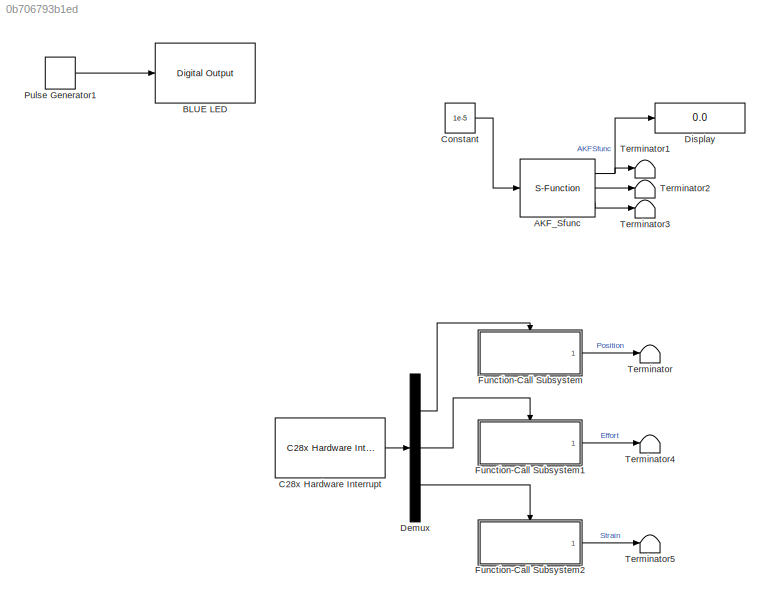
MODEL slx_0b706793b1ed
KIND model
CONFIG AbsTol = auto
CONFIG EnableMultiTasking = on
CONFIG FixedStep = auto
CONFIG InitFcn = clear\naddpath('./../1D/')\naddpath(genpath('./nml'))\naddpath('./MatLib')\n\n% Run configuration file\n[Beam, sBeam, modelSettings,...\n        simulationSettings, plotSettings, simulinkSettings,...\n        LO,KF,AKF,DKF,GDF,...\n        Cd] = configure(1);\n\n% Additional settings\nAKF.nd = AKF.derivativeOrder;\nDKF.nd = DKF.derivativeOrder;\nmodelSettings.l = 1;\n\n% Build beam model, put it in model object\nS...<+470ch>
CONFIG MaxStep = auto
CONFIG MinStep = auto
CONFIG RelTol = 1e-3
CONFIG SampleTimeConstraint = Unconstrained
CONFIG SolverName = FixedStepDiscrete
CONFIG StartTime = 0.0
CONFIG StopTime = Inf
BLOCK [S-Function] AKF_Sfunc
  Commented = on
  EnableBusSupport = off
  FunctionName = AKF_Sfunc
  Parameters = Ap,Cp,Qp,Rp,Np,P0p,Bwp,nup,nyp,nqp
  Ports = [1, 3]
  SFcnIsStateOwnerBlock = off
  SFunctionDeploymentMode = off
BLOCK [Reference] BLUE LED  REF=c2837xDlib/Digital Output
  Ports = [1]
  SourceBlock = c2837xDlib/Digital Output
  SourceProductBaseCode = TIC2000
  SourceType = F2837x GPIO Digital Output
  UserDataPersistent = on
BLOCK [Reference] C28x Hardware Interrupt  REF=c2000lib/Scheduling/C28x Hardware Interrupt
  Ports = [0, 1]
  SourceBlock = c2000lib/Scheduling/C28x Hardware Interrupt
  SourceProductBaseCode = TIC2000
  SourceType = C28x Interrupt Block
BLOCK [Constant] Constant
  Commented = on
  SampleTime = 1/(1e3)
  Value = 1e-5
BLOCK [Demux] Demux
  Outputs = 3
  Ports = [1, 3]
BLOCK [Display] Display
  Commented = on
  Decimation = 1
  Ports = [1]
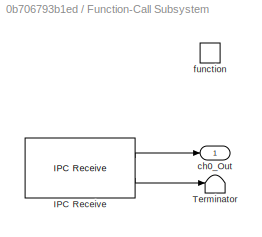
BLOCK [SubSystem] Function-Call Subsystem
  Ports = [0, 1, 0, 1]
  RequestExecContextInheritance = off
  TreatAsAtomicUnit = on
BLOCK [Reference] Function-Call Subsystem/IPC Receive  REF=c2837xDlib/IPC Receive
  Ports = [0, 2]
  SourceBlock = c2837xDlib/IPC Receive
  SourceProductBaseCode = TIC2000
  SourceType = C28x IPC Receive
BLOCK [Terminator] Function-Call Subsystem/Terminator
BLOCK [Outport] Function-Call Subsystem/ch0_Out
BLOCK [TriggerPort] Function-Call Subsystem/function
  Ports = []
  StatesWhenEnabling = held
  TriggerType = function-call
  VariantControl = Variant
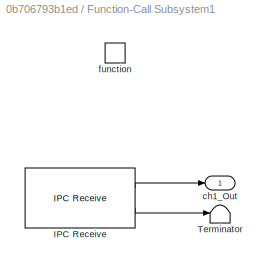
BLOCK [SubSystem] Function-Call Subsystem1
  Ports = [0, 1, 0, 1]
  RequestExecContextInheritance = off
  TreatAsAtomicUnit = on
BLOCK [Reference] Function-Call Subsystem1/IPC Receive  REF=c2837xDlib/IPC Receive
  Ports = [0, 2]
  SourceBlock = c2837xDlib/IPC Receive
  SourceProductBaseCode = TIC2000
  SourceType = C28x IPC Receive
BLOCK [Terminator] Function-Call Subsystem1/Terminator
BLOCK [Outport] Function-Call Subsystem1/ch1_Out
BLOCK [TriggerPort] Function-Call Subsystem1/function
  Ports = []
  StatesWhenEnabling = held
  TriggerType = function-call
  VariantControl = Variant
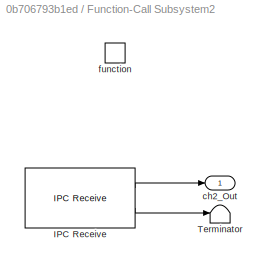
BLOCK [SubSystem] Function-Call Subsystem2
  Ports = [0, 1, 0, 1]
  RequestExecContextInheritance = off
  TreatAsAtomicUnit = on
BLOCK [Reference] Function-Call Subsystem2/IPC Receive  REF=c2837xDlib/IPC Receive
  Ports = [0, 2]
  SourceBlock = c2837xDlib/IPC Receive
  SourceProductBaseCode = TIC2000
  SourceType = C28x IPC Receive
BLOCK [Terminator] Function-Call Subsystem2/Terminator
BLOCK [Outport] Function-Call Subsystem2/ch2_Out
BLOCK [TriggerPort] Function-Call Subsystem2/function
  Ports = []
  StatesWhenEnabling = held
  TriggerType = function-call
  VariantControl = Variant
BLOCK [DiscretePulseGenerator] Pulse Generator1
  Period = 1
  Ports = [0, 1]
  PulseType = Time based
  PulseWidth = 50
  SampleTime = -1
BLOCK [Terminator] Terminator
BLOCK [Terminator] Terminator1
  Commented = on
BLOCK [Terminator] Terminator2
  Commented = on
BLOCK [Terminator] Terminator3
  Commented = on
BLOCK [Terminator] Terminator4
BLOCK [Terminator] Terminator5
NET AKF_Sfunc:1 -> Display:1, Terminator1:1
LINE AKF_Sfunc:2 -> Terminator2:1
LINE AKF_Sfunc:3 -> Terminator3:1
LINE C28x Hardware Interrupt:1 -> Demux:1
LINE Constant:1 -> AKF_Sfunc:1
LINE Demux:1 -> Function-Call Subsystem:trigger
LINE Demux:2 -> Function-Call Subsystem1:trigger
LINE Demux:3 -> Function-Call Subsystem2:trigger
LINE Function-Call Subsystem/IPC Receive:1 -> Function-Call Subsystem/ch0_Out:1
LINE Function-Call Subsystem/IPC Receive:2 -> Function-Call Subsystem/Terminator:1
LINE Function-Call Subsystem1/IPC Receive:1 -> Function-Call Subsystem1/ch1_Out:1
LINE Function-Call Subsystem1/IPC Receive:2 -> Function-Call Subsystem1/Terminator:1
LINE Function-Call Subsystem1:1 -> Terminator4:1
LINE Function-Call Subsystem2/IPC Receive:1 -> Function-Call Subsystem2/ch2_Out:1
LINE Function-Call Subsystem2/IPC Receive:2 -> Function-Call Subsystem2/Terminator:1
LINE Function-Call Subsystem2:1 -> Terminator5:1
LINE Function-Call Subsystem:1 -> Terminator:1
LINE Pulse Generator1:1 -> BLUE LED:1
note: NET lines group one-source signal fan-out (src -> all destinations, sorted); 1:1 wires keep LINE
